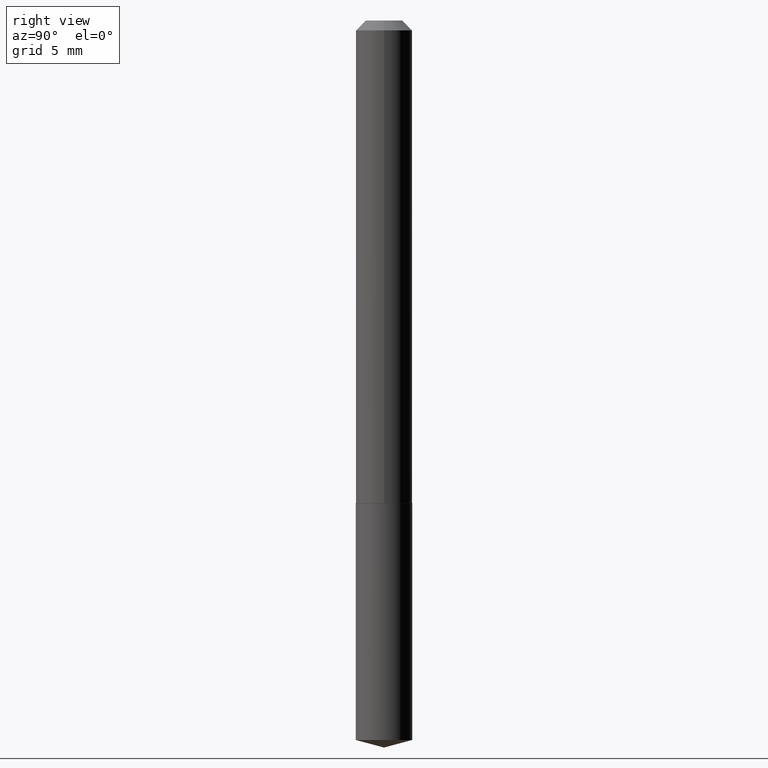
[diagram: clean part render]
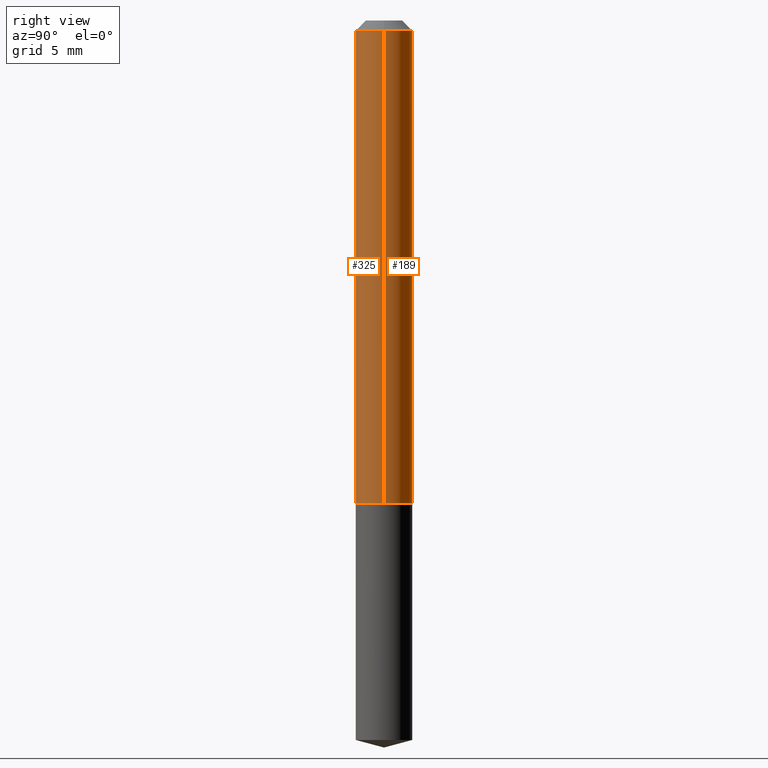
[diagram: same view with one multi-face feature highlighted, each face labeled with its STEP entity id]
A machine part, right view. The highlighted faces form ONE feature: a constant-radius fillet chain: 2 tangent blend faces with common blend radius 2.2504 mm. The faces share edges in the B-rep.
Their STEP definitions:
[1] entity #325 (Cylinder):
#1 = DIRECTION ( 'NONE',  ( 1.000000000000000000, -6.982962677686267499E-15, 4.876176775795935793E-29 ) ) ;
#18 = VECTOR ( 'NONE', #241, 39.37007874015748143 ) ;
#30 = DIRECTION ( 'NONE',  ( -2.445468806185136597E-29, 3.491481338843145583E-15, 1.000000000000000000 ) ) ;
#34 = CARTESIAN_POINT ( 'NONE',  ( 7.642090019328602662E-31, -1.091087918388490267E-16, -0.03125000000000020817 ) ) ;
#52 = ORIENTED_EDGE ( 'NONE', *, *, #150, .T. ) ;
#56 = CARTESIAN_POINT ( 'NONE',  ( 0.08859999999999999820, -7.277992850818522507E-16, -0.03125000000000020817 ) ) ;
#58 = CARTESIAN_POINT ( 'NONE',  ( 0.000000000000000000, 0.000000000000000000, 0.000000000000000000 ) ) ;
#64 = VECTOR ( 'NONE', #120, 39.37007874015748143 ) ;
#86 = VERTEX_POINT ( 'NONE', #194 ) ;
#92 = DIRECTION ( 'NONE',  ( -2.445468806185136597E-29, 3.491481338843145583E-15, 1.000000000000000000 ) ) ;
#120 = DIRECTION ( 'NONE',  ( -2.445468806185136877E-29, 3.491481338843145188E-15, 1.000000000000000000 ) ) ;
#126 = CARTESIAN_POINT ( 'NONE',  ( 3.705618882012338006E-29, -5.290641672749019341E-15, -1.515300000000000313 ) ) ;
#132 = AXIS2_PLACEMENT_3D ( 'NONE', #58, #178, #1 ) ;
#142 = CARTESIAN_POINT ( 'NONE',  ( 0.08860000000000008147, -6.186904932430038403E-16, 4.320292623355202969E-30 ) ) ;
#150 = EDGE_CURVE ( 'NONE', #166, #344, #292, .T. ) ;
#153 = LINE ( 'NONE', #246, #18 ) ;
#158 = VERTEX_POINT ( 'NONE', #265 ) ;
#166 = VERTEX_POINT ( 'NONE', #268 ) ;
#178 = DIRECTION ( 'NONE',  ( -2.445468806185136597E-29, 3.491481338843145583E-15, 1.000000000000000000 ) ) ;
#184 = ORIENTED_EDGE ( 'NONE', *, *, #200, .F. ) ;
#194 = CARTESIAN_POINT ( 'NONE',  ( -0.08860000000000017861, -4.661100808865568913E-15, -1.515300000000000313 ) ) ;
#200 = EDGE_CURVE ( 'NONE', #86, #158, #153, .T. ) ;
#202 = ORIENTED_EDGE ( 'NONE', *, *, #269, .F. ) ;
#208 = EDGE_LOOP ( 'NONE', ( #184, #345, #52, #202 ) ) ;
#216 = DIRECTION ( 'NONE',  ( 1.000000000000000000, -6.982962677686265922E-15, 0.000000000000000000 ) ) ;
#229 = AXIS2_PLACEMENT_3D ( 'NONE', #34, #92, #389 ) ;
#241 = DIRECTION ( 'NONE',  ( -2.445468806185136877E-29, 3.491481338843145188E-15, 1.000000000000000000 ) ) ;
#243 = CIRCLE ( 'NONE', #229, 0.08859999999999999820 ) ;
#245 = EDGE_CURVE ( 'NONE', #86, #166, #330, .T. ) ;
#246 = CARTESIAN_POINT ( 'NONE',  ( -0.08860000000000008147, 6.295408638834493435E-16, -4.358176489965850471E-30 ) ) ;
#265 = CARTESIAN_POINT ( 'NONE',  ( -0.08859999999999999820, -2.070334368410483793E-15, -0.03125000000000020817 ) ) ;
#268 = CARTESIAN_POINT ( 'NONE',  ( 0.08860000000000017861, -5.909332165992023872E-15, -1.515300000000000313 ) ) ;
#269 = EDGE_CURVE ( 'NONE', #158, #344, #243, .T. ) ;
#292 = LINE ( 'NONE', #142, #64 ) ;
#308 = AXIS2_PLACEMENT_3D ( 'NONE', #126, #30, #216 ) ;
#325 = ADVANCED_FACE ( 'NONE', ( #337 ), #327, .T. ) ;
#327 = CYLINDRICAL_SURFACE ( 'NONE', #132, 0.08860000000000008147 ) ;
#330 = CIRCLE ( 'NONE', #308, 0.08860000000000017861 ) ;
#337 = FACE_OUTER_BOUND ( 'NONE', #208, .T. ) ;
#344 = VERTEX_POINT ( 'NONE', #56 ) ;
#345 = ORIENTED_EDGE ( 'NONE', *, *, #245, .T. ) ;
#389 = DIRECTION ( 'NONE',  ( 1.000000000000000000, -6.982962677686266711E-15, 0.000000000000000000 ) ) ;
[2] entity #189 (Cylinder):
#18 = VECTOR ( 'NONE', #241, 39.37007874015748143 ) ;
#31 = EDGE_CURVE ( 'NONE', #166, #86, #251, .T. ) ;
#46 = CARTESIAN_POINT ( 'NONE',  ( 3.705618882012338006E-29, -5.290641672749019341E-15, -1.515300000000000313 ) ) ;
#56 = CARTESIAN_POINT ( 'NONE',  ( 0.08859999999999999820, -7.277992850818522507E-16, -0.03125000000000020817 ) ) ;
#57 = CIRCLE ( 'NONE', #85, 0.08859999999999999820 ) ;
#64 = VECTOR ( 'NONE', #120, 39.37007874015748143 ) ;
#74 = ORIENTED_EDGE ( 'NONE', *, *, #200, .T. ) ;
#75 = EDGE_LOOP ( 'NONE', ( #374, #74, #261, #235 ) ) ;
#81 = CARTESIAN_POINT ( 'NONE',  ( 0.000000000000000000, 0.000000000000000000, 0.000000000000000000 ) ) ;
#85 = AXIS2_PLACEMENT_3D ( 'NONE', #215, #336, #305 ) ;
#86 = VERTEX_POINT ( 'NONE', #194 ) ;
#120 = DIRECTION ( 'NONE',  ( -2.445468806185136877E-29, 3.491481338843145188E-15, 1.000000000000000000 ) ) ;
#142 = CARTESIAN_POINT ( 'NONE',  ( 0.08860000000000008147, -6.186904932430038403E-16, 4.320292623355202969E-30 ) ) ;
#150 = EDGE_CURVE ( 'NONE', #166, #344, #292, .T. ) ;
#153 = LINE ( 'NONE', #246, #18 ) ;
#158 = VERTEX_POINT ( 'NONE', #265 ) ;
#166 = VERTEX_POINT ( 'NONE', #268 ) ;
#179 = DIRECTION ( 'NONE',  ( -2.445468806185136597E-29, 3.491481338843145583E-15, 1.000000000000000000 ) ) ;
#189 = ADVANCED_FACE ( 'NONE', ( #231 ), #352, .T. ) ;
#194 = CARTESIAN_POINT ( 'NONE',  ( -0.08860000000000017861, -4.661100808865568913E-15, -1.515300000000000313 ) ) ;
#200 = EDGE_CURVE ( 'NONE', #86, #158, #153, .T. ) ;
#210 = EDGE_CURVE ( 'NONE', #344, #158, #57, .T. ) ;
#215 = CARTESIAN_POINT ( 'NONE',  ( 7.642090019328602662E-31, -1.091087918388490267E-16, -0.03125000000000020817 ) ) ;
#231 = FACE_OUTER_BOUND ( 'NONE', #75, .T. ) ;
#235 = ORIENTED_EDGE ( 'NONE', *, *, #150, .F. ) ;
#241 = DIRECTION ( 'NONE',  ( -2.445468806185136877E-29, 3.491481338843145188E-15, 1.000000000000000000 ) ) ;
#246 = CARTESIAN_POINT ( 'NONE',  ( -0.08860000000000008147, 6.295408638834493435E-16, -4.358176489965850471E-30 ) ) ;
#251 = CIRCLE ( 'NONE', #329, 0.08860000000000017861 ) ;
#261 = ORIENTED_EDGE ( 'NONE', *, *, #210, .F. ) ;
#265 = CARTESIAN_POINT ( 'NONE',  ( -0.08859999999999999820, -2.070334368410483793E-15, -0.03125000000000020817 ) ) ;
#268 = CARTESIAN_POINT ( 'NONE',  ( 0.08860000000000017861, -5.909332165992023872E-15, -1.515300000000000313 ) ) ;
#272 = DIRECTION ( 'NONE',  ( 1.000000000000000000, -6.982962677686267499E-15, 4.876176775795935793E-29 ) ) ;
#292 = LINE ( 'NONE', #142, #64 ) ;
#305 = DIRECTION ( 'NONE',  ( 1.000000000000000000, -6.982962677686266711E-15, 0.000000000000000000 ) ) ;
#323 = AXIS2_PLACEMENT_3D ( 'NONE', #81, #179, #272 ) ;
#329 = AXIS2_PLACEMENT_3D ( 'NONE', #46, #382, #385 ) ;
#336 = DIRECTION ( 'NONE',  ( -2.445468806185136597E-29, 3.491481338843145583E-15, 1.000000000000000000 ) ) ;
#344 = VERTEX_POINT ( 'NONE', #56 ) ;
#352 = CYLINDRICAL_SURFACE ( 'NONE', #323, 0.08860000000000008147 ) ;
#374 = ORIENTED_EDGE ( 'NONE', *, *, #31, .T. ) ;
#382 = DIRECTION ( 'NONE',  ( -2.445468806185136597E-29, 3.491481338843145583E-15, 1.000000000000000000 ) ) ;
#385 = DIRECTION ( 'NONE',  ( 1.000000000000000000, -6.982962677686265922E-15, 0.000000000000000000 ) ) ;